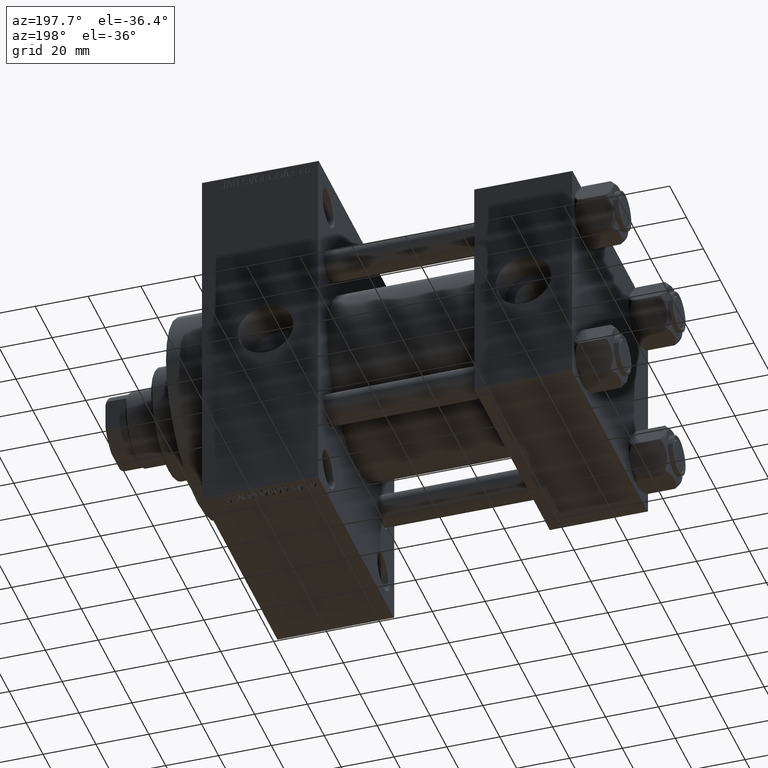
[diagram: clean part render]
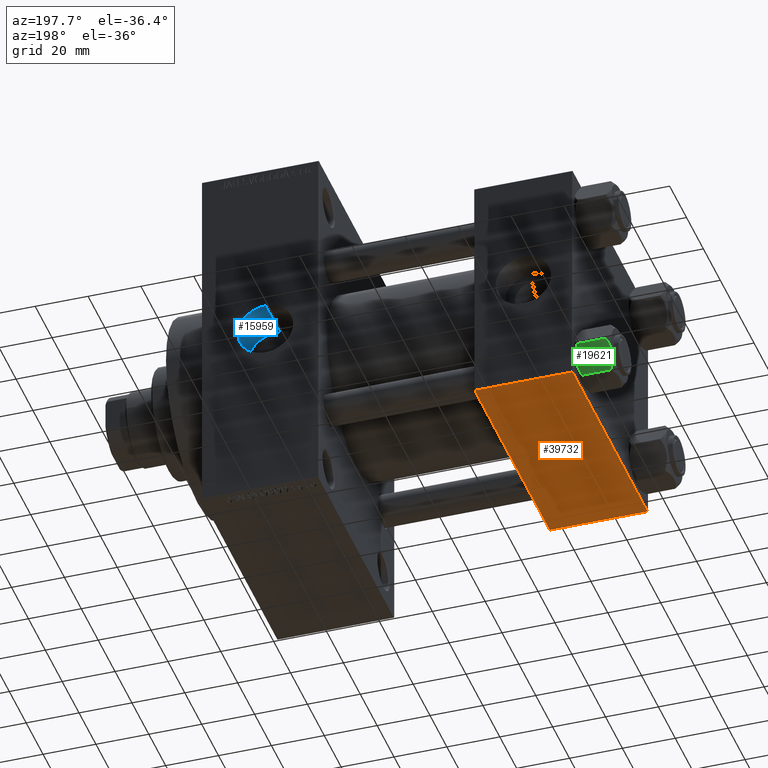
[diagram: same view with three faces highlighted in distinct colors, each labeled with its STEP entity id]
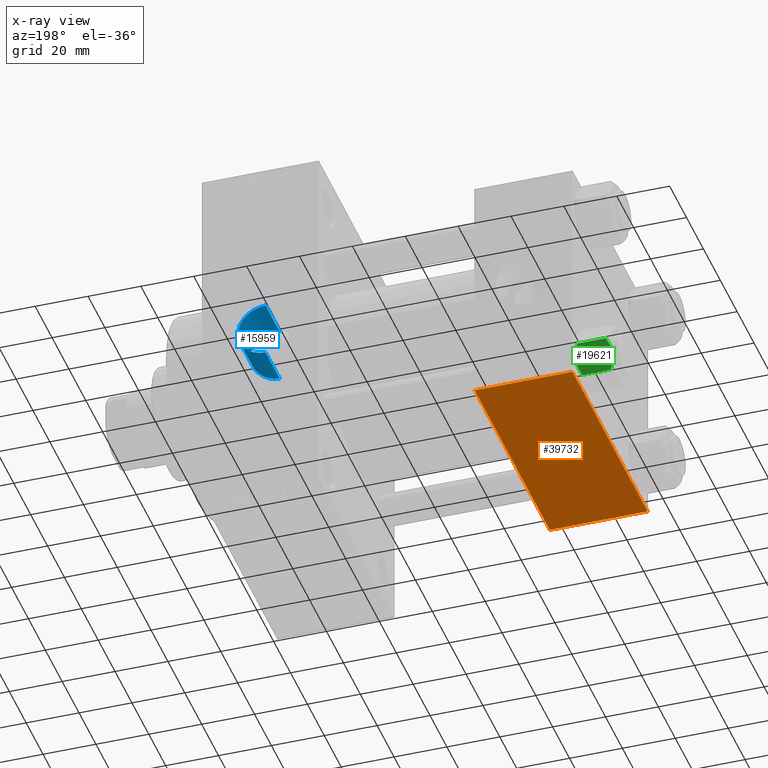
[diagram: x-ray of the same camera — body ghosted, the three highlighted faces saturated]
A machine part, auxiliary view with three faces highlighted in distinct colors.
The next image is the same camera in x-ray (body ghosted, the three faces saturated) — at least one of them is partly hidden behind the body in this view.
Their STEP definitions:

[orange] entity #39732 — the highlighted planar face has unit normal (0, 0, -1).
#2081 = CARTESIAN_POINT ( 'NONE',  ( 0.000000000000000000, 44.49999999999998579, -44.99999999999998579 ) ) ;
#2476 = CARTESIAN_POINT ( 'NONE',  ( 0.000000000000000000, 44.99999999999998579, -44.99999999999998579 ) ) ;
#3028 = PLANE ( 'NONE',  #8155 ) ;
#4463 = CARTESIAN_POINT ( 'NONE',  ( 37.00000000000000000, 44.49999999999998579, -44.99999999999998579 ) ) ;
#5061 = VERTEX_POINT ( 'NONE', #36346 ) ;
#5157 = DIRECTION ( 'NONE',  ( 1.000000000000000000, 0.000000000000000000, 0.000000000000000000 ) ) ;
#7503 = VECTOR ( 'NONE', #8970, 1000.000000000000000 ) ;
#8155 = AXIS2_PLACEMENT_3D ( 'NONE', #17850, #20728, #32435 ) ;
#8191 = EDGE_CURVE ( 'NONE', #15988, #12928, #37904, .T. ) ;
#8970 = DIRECTION ( 'NONE',  ( -1.000000000000000000, 0.000000000000000000, 0.000000000000000000 ) ) ;
#10803 = ORIENTED_EDGE ( 'NONE', *, *, #47169, .F. ) ;
#11904 = VECTOR ( 'NONE', #30977, 1000.000000000000000 ) ;
#12084 = CARTESIAN_POINT ( 'NONE',  ( 0.000000000000000000, -44.49999999999998579, -45.00000000000000000 ) ) ;
#12928 = VERTEX_POINT ( 'NONE', #45761 ) ;
#13243 = LINE ( 'NONE', #2476, #42945 ) ;
#13271 = EDGE_LOOP ( 'NONE', ( #10803, #44881, #32986, #36409 ) ) ;
#13291 = CARTESIAN_POINT ( 'NONE',  ( 37.00000000000000000, 44.99999999999998579, -44.99999999999998579 ) ) ;
#15062 = EDGE_CURVE ( 'NONE', #5061, #31971, #41676, .T. ) ;
#15988 = VERTEX_POINT ( 'NONE', #2081 ) ;
#16396 = LINE ( 'NONE', #13291, #11904 ) ;
#16589 = DIRECTION ( 'NONE',  ( 0.000000000000000000, -1.000000000000000000, -1.541976423090495633E-16 ) ) ;
#17850 = CARTESIAN_POINT ( 'NONE',  ( 37.00000000000000000, 44.99999999999998579, -44.99999999999998579 ) ) ;
#20728 = DIRECTION ( 'NONE',  ( 0.000000000000000000, 1.541976423090495880E-16, -1.000000000000000000 ) ) ;
#30977 = DIRECTION ( 'NONE',  ( 0.000000000000000000, -1.000000000000000000, -1.541976423090495633E-16 ) ) ;
#31971 = VERTEX_POINT ( 'NONE', #38169 ) ;
#32435 = DIRECTION ( 'NONE',  ( 0.000000000000000000, 1.000000000000000000, 1.541976423090495880E-16 ) ) ;
#32986 = ORIENTED_EDGE ( 'NONE', *, *, #37221, .T. ) ;
#33311 = VECTOR ( 'NONE', #5157, 1000.000000000000000 ) ;
#35772 = FACE_OUTER_BOUND ( 'NONE', #13271, .T. ) ;
#36346 = CARTESIAN_POINT ( 'NONE',  ( 37.00000000000000000, -44.49999999999995737, -45.00000000000000000 ) ) ;
#36409 = ORIENTED_EDGE ( 'NONE', *, *, #15062, .T. ) ;
#37221 = EDGE_CURVE ( 'NONE', #12928, #5061, #16396, .T. ) ;
#37904 = LINE ( 'NONE', #4463, #33311 ) ;
#38169 = CARTESIAN_POINT ( 'NONE',  ( 0.000000000000000000, -44.49999999999995737, -45.00000000000000000 ) ) ;
#39732 = ADVANCED_FACE ( 'NONE', ( #35772 ), #3028, .T. ) ;
#41676 = LINE ( 'NONE', #12084, #7503 ) ;
#42945 = VECTOR ( 'NONE', #16589, 1000.000000000000000 ) ;
#44881 = ORIENTED_EDGE ( 'NONE', *, *, #8191, .T. ) ;
#45761 = CARTESIAN_POINT ( 'NONE',  ( 37.00000000000000000, 44.49999999999998579, -44.99999999999998579 ) ) ;
#47169 = EDGE_CURVE ( 'NONE', #15988, #31971, #13243, .T. ) ;

[blue] entity #15959 — the highlighted cylindrical surface (edge-blend (fillet) strip) has radius 10.48 mm, axis along (0, 1, 0).
#79 = ORIENTED_EDGE ( 'NONE', *, *, #30357, .T. ) ;
#199 = CARTESIAN_POINT ( 'NONE',  ( 119.3944568409847733, 28.30729626029973645, -9.938490869674263095 ) ) ;
#304 = ORIENTED_EDGE ( 'NONE', *, *, #1973, .T. ) ;
#1331 = VERTEX_POINT ( 'NONE', #40898 ) ;
#1973 = EDGE_CURVE ( 'NONE', #20698, #41549, #37380, .T. ) ;
#2815 = CARTESIAN_POINT ( 'NONE',  ( 122.3950967947522912, 28.82709093977712556, 8.309601500369888427 ) ) ;
#3048 = CARTESIAN_POINT ( 'NONE',  ( 126.3942240619415855, 29.97012602456189612, -1.382554006488357912 ) ) ;
#3282 = CARTESIAN_POINT ( 'NONE',  ( 125.0902213596345689, 29.54095946462917155, 5.260287319037080245 ) ) ;
#3531 = CARTESIAN_POINT ( 'NONE',  ( 123.1731662640724210, 29.00983069254146685, 7.647933622233230366 ) ) ;
#3770 = CARTESIAN_POINT ( 'NONE',  ( 120.6664021070156707, 28.48775938261396590, 9.408788335372456402 ) ) ;
#4514 = EDGE_CURVE ( 'NONE', #20698, #1331, #40971, .T. ) ;
#5364 = ORIENTED_EDGE ( 'NONE', *, *, #46341, .F. ) ;
#6886 = CARTESIAN_POINT ( 'NONE',  ( 126.4630151315455606, 29.99405350600730458, -0.6904084209729824950 ) ) ;
#7129 = CARTESIAN_POINT ( 'NONE',  ( 117.3845237662672076, 28.13600843276157448, 10.41084356096757446 ) ) ;
#8560 = DIRECTION ( 'NONE',  ( 0.000000000000000000, 0.000000000000000000, 1.000000000000000000 ) ) ;
#8885 = CARTESIAN_POINT ( 'NONE',  ( 116.0000000000000000, 44.80000000000001847, 10.47999999999999865 ) ) ;
#10125 = CARTESIAN_POINT ( 'NONE',  ( 116.0000000000000000, -29.64191626734007201, -10.48000000000000220 ) ) ;
#10240 = CARTESIAN_POINT ( 'NONE',  ( 126.4119334145255067, 29.97602025324989583, 1.377942522026811778 ) ) ;
#10955 = CARTESIAN_POINT ( 'NONE',  ( 122.1182821996174681, 28.76674563627389247, 8.515509313587612539 ) ) ;
#11586 = CARTESIAN_POINT ( 'NONE',  ( 116.0000000000000000, -29.64191626734007201, 10.47999999999999865 ) ) ;
#11669 = AXIS2_PLACEMENT_3D ( 'NONE', #35361, #16966, #46339 ) ;
#11802 = CARTESIAN_POINT ( 'NONE',  ( 116.0000000000000000, 44.80000000000001847, -10.48000000000000220 ) ) ;
#13816 = CARTESIAN_POINT ( 'NONE',  ( 125.4072711420142809, 29.64123673593073960, -4.670453208736268458 ) ) ;
#13927 = EDGE_LOOP ( 'NONE', ( #5364, #29967, #304, #79 ) ) ;
#14049 = CARTESIAN_POINT ( 'NONE',  ( 119.7170611001097882, 28.35291915705131061, 9.804662585683473708 ) ) ;
#14297 = CARTESIAN_POINT ( 'NONE',  ( 122.9226840027825887, 28.94609101070397728, -7.897476117125369122 ) ) ;
#14533 = CARTESIAN_POINT ( 'NONE',  ( 121.2538723618131655, 28.59517209534081417, -9.074427182106704848 ) ) ;
#15030 = CARTESIAN_POINT ( 'NONE',  ( 116.0000000000000000, -29.64191626734007201, -2.198945251238207943E-15 ) ) ;
#15238 = CARTESIAN_POINT ( 'NONE',  ( 116.6875923004624980, 28.11626763150323782, -10.46311650470940435 ) ) ;
#15959 = ADVANCED_FACE ( 'NONE', ( #44855 ), #23368, .F. ) ;
#16966 = DIRECTION ( 'NONE',  ( 0.000000000000000000, 1.000000000000000000, 0.000000000000000000 ) ) ;
#17392 = CARTESIAN_POINT ( 'NONE',  ( 124.3253861848219373, 29.31464168039805784, 6.402397357205709127 ) ) ;
#17870 = CARTESIAN_POINT ( 'NONE',  ( 126.3429318193838924, 29.95232553474092185, -1.724057622897176678 ) ) ;
#18116 = CARTESIAN_POINT ( 'NONE',  ( 126.2088621083209432, 29.90629404900236921, 2.393471372070395287 ) ) ;
#18356 = CARTESIAN_POINT ( 'NONE',  ( 126.1234663938197968, 29.87716762247597302, 2.732212426824471851 ) ) ;
#18623 = VECTOR ( 'NONE', #22336, 1000.000000000000000 ) ;
#20698 = VERTEX_POINT ( 'NONE', #28560 ) ;
#21226 = CARTESIAN_POINT ( 'NONE',  ( 126.4797582609246120, 29.99991555248753272, 0.6941883290317075739 ) ) ;
#21461 = CARTESIAN_POINT ( 'NONE',  ( 125.9399912239310453, 29.81458687334005120, -3.392117035502130840 ) ) ;
#21702 = CARTESIAN_POINT ( 'NONE',  ( 122.3991954878801067, 28.82380471925722532, -8.327394824909754689 ) ) ;
#21945 = CARTESIAN_POINT ( 'NONE',  ( 120.6483450916582427, 28.49013521307115937, -9.399004808299563862 ) ) ;
#22176 = CARTESIAN_POINT ( 'NONE',  ( 116.3438730021886443, 28.10995553180402595, -10.48000000000000753 ) ) ;
#22336 = DIRECTION ( 'NONE',  ( -0.000000000000000000, 1.000000000000000000, -0.000000000000000000 ) ) ;
#23368 = CYLINDRICAL_SURFACE ( 'NONE', #30377, 10.48000000000000043 ) ;
#24806 = CARTESIAN_POINT ( 'NONE',  ( 122.9218863494081120, 28.94851325491607952, 7.876181147934429916 ) ) ;
#25049 = CARTESIAN_POINT ( 'NONE',  ( 118.3951681404155210, 28.20981294759199898, 10.20840888712403682 ) ) ;
#25283 = CARTESIAN_POINT ( 'NONE',  ( 116.6980899380639727, 28.10995553180403661, 10.47999999999999865 ) ) ;
#26968 = VERTEX_POINT ( 'NONE', #11802 ) ;
#28560 = CARTESIAN_POINT ( 'NONE',  ( 116.0000000000000000, 28.10995553180402950, 10.47999999999999865 ) ) ;
#28871 = CARTESIAN_POINT ( 'NONE',  ( 125.8054432238869822, 29.77080659644961003, 3.714849565276028276 ) ) ;
#28991 = LINE ( 'NONE', #10125, #30712 ) ;
#29347 = CARTESIAN_POINT ( 'NONE',  ( 124.5146658568484668, 29.37067223596217502, -6.119359129450981705 ) ) ;
#29587 = CARTESIAN_POINT ( 'NONE',  ( 117.7201323274241815, 28.16049430193229242, -10.34368535468164119 ) ) ;
#29967 = ORIENTED_EDGE ( 'NONE', *, *, #4514, .F. ) ;
#30045 = CARTESIAN_POINT ( 'NONE',  ( 118.7402809744361321, 28.23506111628061532, -10.13915124372663001 ) ) ;
#30357 = EDGE_CURVE ( 'NONE', #41549, #26968, #30715, .T. ) ;
#30377 = AXIS2_PLACEMENT_3D ( 'NONE', #15030, #41279, #8560 ) ;
#30712 = VECTOR ( 'NONE', #46417, 1000.000000000000000 ) ;
#30715 = CIRCLE ( 'NONE', #11669, 10.48000000000000043 ) ;
#32452 = CARTESIAN_POINT ( 'NONE',  ( 123.8766334625353949, 29.19190493786176432, -6.921428074835843880 ) ) ;
#32694 = CARTESIAN_POINT ( 'NONE',  ( 123.8917107446759474, 29.19304966441860927, 6.928961920144671716 ) ) ;
#32924 = CARTESIAN_POINT ( 'NONE',  ( 120.3394417382619395, 28.44122229582507089, -9.545471696213173374 ) ) ;
#33624 = CARTESIAN_POINT ( 'NONE',  ( 116.0000000000000000, 28.10995553180402595, -10.48000000000000220 ) ) ;
#35361 = CARTESIAN_POINT ( 'NONE',  ( 116.0000000000000000, 44.80000000000001847, -2.198945251238207943E-15 ) ) ;
#36279 = CARTESIAN_POINT ( 'NONE',  ( 121.2662955552271455, 28.59360380551412817, 9.086475383822232743 ) ) ;
#36522 = CARTESIAN_POINT ( 'NONE',  ( 118.7290047839929912, 28.24020088778831905, 10.12435328880594554 ) ) ;
#37222 = CARTESIAN_POINT ( 'NONE',  ( 117.3747204287125783, 28.14145658298057029, -10.39517839700973489 ) ) ;
#37380 = LINE ( 'NONE', #11586, #18623 ) ;
#39371 = CARTESIAN_POINT ( 'NONE',  ( 124.3114165177487820, 29.31220912400723577, -6.392798821075968085 ) ) ;
#39610 = CARTESIAN_POINT ( 'NONE',  ( 125.9217316417465327, 29.80941683571757395, 3.392461908593601194 ) ) ;
#39846 = CARTESIAN_POINT ( 'NONE',  ( 125.0829805892810498, 29.53877363973344572, -5.271871285477989666 ) ) ;
#40086 = CARTESIAN_POINT ( 'NONE',  ( 126.1400674918413927, 29.88267782535193717, -2.735376480645546504 ) ) ;
#40898 = CARTESIAN_POINT ( 'NONE',  ( 116.0000000000000000, 28.10995553180402595, -10.48000000000000220 ) ) ;
#40971 = B_SPLINE_CURVE_WITH_KNOTS ( 'NONE', 3,
 ( #43659, #25283, #7129, #25049, #36522, #46755, #14049, #3770, #36279, #10955, #2815, #24806, #3531, #32694, #17392, #3282, #46524, #28871, #39610, #18356, #18116, #10240, #21226, #43185, #6886, #3048, #17870, #40086, #21461, #13816, #39846, #29347, #39371, #32452, #47002, #14297, #21702, #47241, #14533, #21945, #32924, #199, #30045, #29587, #37222, #15238, #22176, #33624 ),
 .UNSPECIFIED., .F., .F.,
 ( 4, 2, 2, 2, 2, 2, 2, 2, 2, 2, 2, 2, 2, 2, 2, 2, 2, 2, 2, 2, 2, 2, 2, 4 ),
 ( 0.003306571874640978469, 0.005371767648722604663, 0.006404365535763416675, 0.007436963422804228688, 0.009502159196885892611, 0.01053475708392670809, 0.01156735497096752531, 0.01363255074504918576, 0.01569774651913082020, 0.01673034440617165650, 0.01776294229321248933, 0.01982813806729416192, 0.02086073595433499822, 0.02189333384137583105, 0.02395852961545748283, 0.02602372538953913461, 0.02705632327657996397, 0.02808892116362078639, 0.03015411693770241389, 0.03118671482474324325, 0.03221931271178406914, 0.03428450848586572786, 0.03531710637290653987, 0.03634970425994735188 ),
 .UNSPECIFIED. ) ;
#41279 = DIRECTION ( 'NONE',  ( -0.000000000000000000, 1.000000000000000000, -0.000000000000000000 ) ) ;
#41549 = VERTEX_POINT ( 'NONE', #8885 ) ;
#43185 = CARTESIAN_POINT ( 'NONE',  ( 126.4801199113428396, 30.00004188902684987, -0.3416054811791413015 ) ) ;
#43659 = CARTESIAN_POINT ( 'NONE',  ( 116.0000000000000000, 28.10995553180402950, 10.47999999999999865 ) ) ;
#44855 = FACE_OUTER_BOUND ( 'NONE', #13927, .T. ) ;
#46339 = DIRECTION ( 'NONE',  ( 0.000000000000000000, 0.000000000000000000, 1.000000000000000000 ) ) ;
#46341 = EDGE_CURVE ( 'NONE', #1331, #26968, #28991, .T. ) ;
#46417 = DIRECTION ( 'NONE',  ( -0.000000000000000000, 1.000000000000000000, -0.000000000000000000 ) ) ;
#46524 = CARTESIAN_POINT ( 'NONE',  ( 125.4118318432556549, 29.64271601913478094, 4.659776581799506268 ) ) ;
#46755 = CARTESIAN_POINT ( 'NONE',  ( 119.3905241761370490, 28.31178435317268693, 9.922416159315377016 ) ) ;
#47002 = CARTESIAN_POINT ( 'NONE',  ( 123.6452155958480859, 29.13013352623691787, -7.176134000890634468 ) ) ;
#47241 = CARTESIAN_POINT ( 'NONE',  ( 121.5495707240801124, 28.65118564949816715, -8.896564878869938298 ) ) ;

[green] entity #19621 — the highlighted planar face has unit normal (0, -0.866, 0.5).
#4038 = VERTEX_POINT ( 'NONE', #28738 ) ;
#4065 = CARTESIAN_POINT ( 'NONE',  ( -9.974696630283190757, -2.849749030213787115, -0.3002673809867329457 ) ) ;
#5225 = CARTESIAN_POINT ( 'NONE',  ( -8.209704053696567527, -5.906805847843720869, 6.159623592433269699E-15 ) ) ;
#5241 = PLANE ( 'NONE',  #32818 ) ;
#5541 = B_SPLINE_CURVE_WITH_KNOTS ( 'NONE', 3,
 ( #32509, #36811, #29165, #4065, #29646, #25341, #14831, #21760 ),
 .UNSPECIFIED., .F., .F.,
 ( 4, 2, 2, 4 ),
 ( 2.544312114893457383E-07, 0.003011550106433538623, 0.004517197944044561847, 0.006022845781655586372 ),
 .UNSPECIFIED. ) ;
#5690 = CARTESIAN_POINT ( 'NONE',  ( -8.715000000000006963, -5.031607595987586556, 0.000000000000000000 ) ) ;
#6868 = CARTESIAN_POINT ( 'NONE',  ( -11.61999999999999922, 6.270720075409452187E-15, -1.556784808024810562 ) ) ;
#7030 = CARTESIAN_POINT ( 'NONE',  ( -5.810000000000000497, -10.06321519197517844, -12.44321519197518633 ) ) ;
#7139 = VERTEX_POINT ( 'NONE', #37252 ) ;
#7273 = CARTESIAN_POINT ( 'NONE',  ( -8.202333004087902779, -5.919572880271047666, -13.96005881939309745 ) ) ;
#9525 = CARTESIAN_POINT ( 'NONE',  ( -5.810000000000000497, -10.06321519197517844, -1.556784808024813893 ) ) ;
#10385 = CARTESIAN_POINT ( 'NONE',  ( -8.460569896449619876, -5.472293462311856871, -14.00000000000000888 ) ) ;
#10819 = CARTESIAN_POINT ( 'NONE',  ( -8.715000000000006963, -5.031607595987586556, 0.000000000000000000 ) ) ;
#12953 = ORIENTED_EDGE ( 'NONE', *, *, #41678, .F. ) ;
#13500 = B_SPLINE_CURVE_WITH_KNOTS ( 'NONE', 3,
 ( #32858, #26401, #15400, #25696, #18756, #40257 ),
 .UNSPECIFIED., .F., .F.,
 ( 4, 2, 4 ),
 ( 0.006022845781655596781, 0.009013049135303641962, 0.01200325248895168714 ),
 .UNSPECIFIED. ) ;
#13732 = VERTEX_POINT ( 'NONE', #40276 ) ;
#14314 = VECTOR ( 'NONE', #27927, 1000.000000000000000 ) ;
#14672 = CARTESIAN_POINT ( 'NONE',  ( -6.265545725125283738, -9.274186850887380373, -12.89876091710046779 ) ) ;
#14760 = DIRECTION ( 'NONE',  ( -0.000000000000000000, -0.000000000000000000, 1.000000000000000000 ) ) ;
#14831 = CARTESIAN_POINT ( 'NONE',  ( -8.969430103550386946, -4.590921729663310025, 6.662949392646161370E-15 ) ) ;
#15400 = CARTESIAN_POINT ( 'NONE',  ( -9.716999946243698005, -3.296092779912219939, -13.84547602999602667 ) ) ;
#15986 = CARTESIAN_POINT ( 'NONE',  ( -6.733375043383495573, -8.463882702393842550, -0.7114554706434480513 ) ) ;
#16265 = ORIENTED_EDGE ( 'NONE', *, *, #31543, .F. ) ;
#16681 = CARTESIAN_POINT ( 'NONE',  ( -7.713000053756304375, -6.767122412062951398, -0.1545239700039803266 ) ) ;
#17867 = ORIENTED_EDGE ( 'NONE', *, *, #41100, .F. ) ;
#18756 = CARTESIAN_POINT ( 'NONE',  ( -11.16498164529022219, -0.7881149087337223635, -12.89823354668505040 ) ) ;
#19621 = ADVANCED_FACE ( 'NONE', ( #37289 ), #5241, .F. ) ;
#20316 = EDGE_CURVE ( 'NONE', #40542, #4038, #45024, .T. ) ;
#20321 = CARTESIAN_POINT ( 'NONE',  ( -11.61999999999999922, 6.288644352490894150E-15, -14.00000000000000000 ) ) ;
#21760 = CARTESIAN_POINT ( 'NONE',  ( -8.715000000000006963, -5.031607595987586556, 0.000000000000000000 ) ) ;
#24499 = ORIENTED_EDGE ( 'NONE', *, *, #20316, .F. ) ;
#25341 = CARTESIAN_POINT ( 'NONE',  ( -9.227666995912100489, -4.143642311704120118, -0.03994118060690279165 ) ) ;
#25696 = CARTESIAN_POINT ( 'NONE',  ( -10.69662495661650148, -1.599332489581326344, -13.28854452935655317 ) ) ;
#26301 = DIRECTION ( 'NONE',  ( -0.4999999999999994449, 0.8660254037844389297, 0.000000000000000000 ) ) ;
#26401 = CARTESIAN_POINT ( 'NONE',  ( -9.220295946303428636, -4.156409344131446026, -14.00000000000000711 ) ) ;
#26491 = ORIENTED_EDGE ( 'NONE', *, *, #30322, .F. ) ;
#27927 = DIRECTION ( 'NONE',  ( -0.000000000000000000, -0.000000000000000000, 1.000000000000000000 ) ) ;
#28738 = CARTESIAN_POINT ( 'NONE',  ( -5.810000000000000497, -10.06321519197517844, -1.556784808024813893 ) ) ;
#29011 = CARTESIAN_POINT ( 'NONE',  ( -7.700834831386346835, -6.788193195293090731, -13.80960203119266438 ) ) ;
#29165 = CARTESIAN_POINT ( 'NONE',  ( -10.69859855102500923, -1.595914123792257611, -0.7141438259524607313 ) ) ;
#29646 = CARTESIAN_POINT ( 'NONE',  ( -9.729165168613654657, -3.275021996682076608, -0.1903979688073365595 ) ) ;
#29752 = ORIENTED_EDGE ( 'NONE', *, *, #45737, .T. ) ;
#30322 = EDGE_CURVE ( 'NONE', #7139, #39673, #45859, .T. ) ;
#31256 = B_SPLINE_CURVE_WITH_KNOTS ( 'NONE', 3,
 ( #7030, #14672, #43090, #39984, #29011, #7273, #10385, #36425 ),
 .UNSPECIFIED., .F., .F.,
 ( 4, 2, 2, 4 ),
 ( 2.544312114906334931E-07, 0.003011550106433543393, 0.004517197944044570521, 0.006022845781655596781 ),
 .UNSPECIFIED. ) ;
#31506 = LINE ( 'NONE', #46061, #14314 ) ;
#31543 = EDGE_CURVE ( 'NONE', #13732, #46742, #31256, .T. ) ;
#32247 = VECTOR ( 'NONE', #14760, 1000.000000000000000 ) ;
#32509 = CARTESIAN_POINT ( 'NONE',  ( -11.61999999999999922, 6.270720075409452187E-15, -1.556784808024810562 ) ) ;
#32818 = AXIS2_PLACEMENT_3D ( 'NONE', #44431, #34391, #26301 ) ;
#32858 = CARTESIAN_POINT ( 'NONE',  ( -8.715000000000006963, -5.031607595987586556, -14.00000000000000000 ) ) ;
#34391 = DIRECTION ( 'NONE',  ( 0.8660254037844390407, 0.4999999999999995004, 0.000000000000000000 ) ) ;
#34602 = CARTESIAN_POINT ( 'NONE',  ( -6.265018354709776638, -9.275100283241451748, -1.101766453314952043 ) ) ;
#36266 = EDGE_LOOP ( 'NONE', ( #16265, #29752, #24499, #12953, #26491, #17867 ) ) ;
#36425 = CARTESIAN_POINT ( 'NONE',  ( -8.715000000000006963, -5.031607595987586556, -14.00000000000000000 ) ) ;
#36811 = CARTESIAN_POINT ( 'NONE',  ( -11.16445427487471420, -0.7890283410877914072, -1.101239082899528432 ) ) ;
#37252 = CARTESIAN_POINT ( 'NONE',  ( -11.61999999999999922, 6.270720075510426383E-15, -12.44321519197518988 ) ) ;
#37289 = FACE_OUTER_BOUND ( 'NONE', #36266, .T. ) ;
#37933 = CARTESIAN_POINT ( 'NONE',  ( -8.715000000000006963, -5.031607595987586556, -14.00000000000000000 ) ) ;
#39673 = VERTEX_POINT ( 'NONE', #6868 ) ;
#39984 = CARTESIAN_POINT ( 'NONE',  ( -7.455303369716809847, -7.213466161761383333, -13.69973261901326644 ) ) ;
#40257 = CARTESIAN_POINT ( 'NONE',  ( -11.61999999999999922, 6.270720075510426383E-15, -12.44321519197518988 ) ) ;
#40276 = CARTESIAN_POINT ( 'NONE',  ( -5.810000000000000497, -10.06321519197517844, -12.44321519197518633 ) ) ;
#40542 = VERTEX_POINT ( 'NONE', #10819 ) ;
#41100 = EDGE_CURVE ( 'NONE', #46742, #7139, #13500, .T. ) ;
#41678 = EDGE_CURVE ( 'NONE', #39673, #40542, #5541, .T. ) ;
#43090 = CARTESIAN_POINT ( 'NONE',  ( -6.731401448974989599, -8.467301068182909063, -13.28585617404753272 ) ) ;
#44431 = CARTESIAN_POINT ( 'NONE',  ( -5.810000000000000497, -10.06321519197517844, -14.00000000000000000 ) ) ;
#45024 = B_SPLINE_CURVE_WITH_KNOTS ( 'NONE', 3,
 ( #5690, #5225, #16681, #15986, #34602, #9525 ),
 .UNSPECIFIED., .F., .F.,
 ( 4, 2, 4 ),
 ( 0.006022845781655586372, 0.009013049135303635023, 0.01200325248895168367 ),
 .UNSPECIFIED. ) ;
#45737 = EDGE_CURVE ( 'NONE', #13732, #4038, #31506, .T. ) ;
#45859 = LINE ( 'NONE', #20321, #32247 ) ;
#46061 = CARTESIAN_POINT ( 'NONE',  ( -5.810000000000000497, -10.06321519197517844, -14.00000000000000000 ) ) ;
#46742 = VERTEX_POINT ( 'NONE', #37933 ) ;